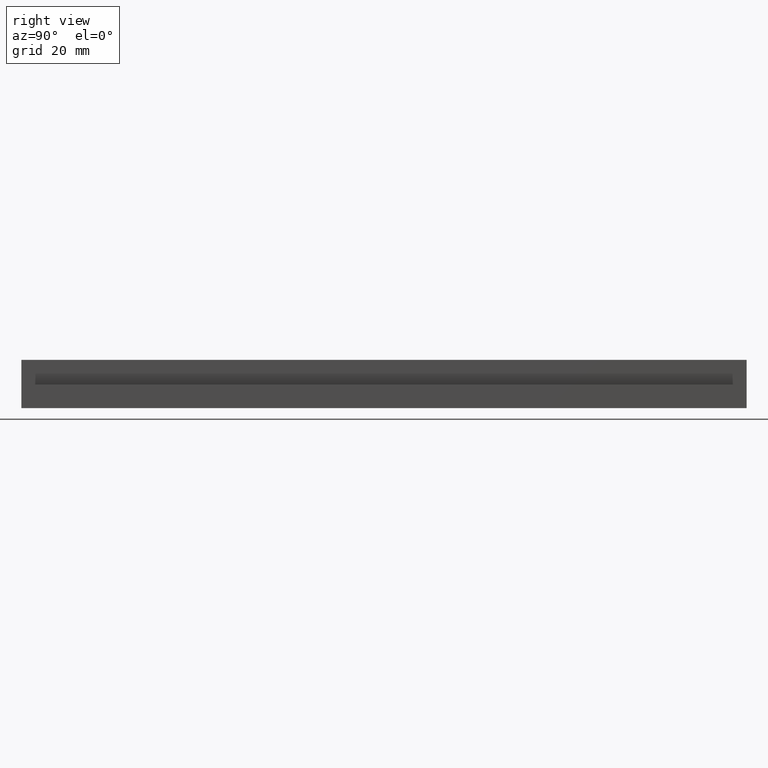
[diagram: clean part render]
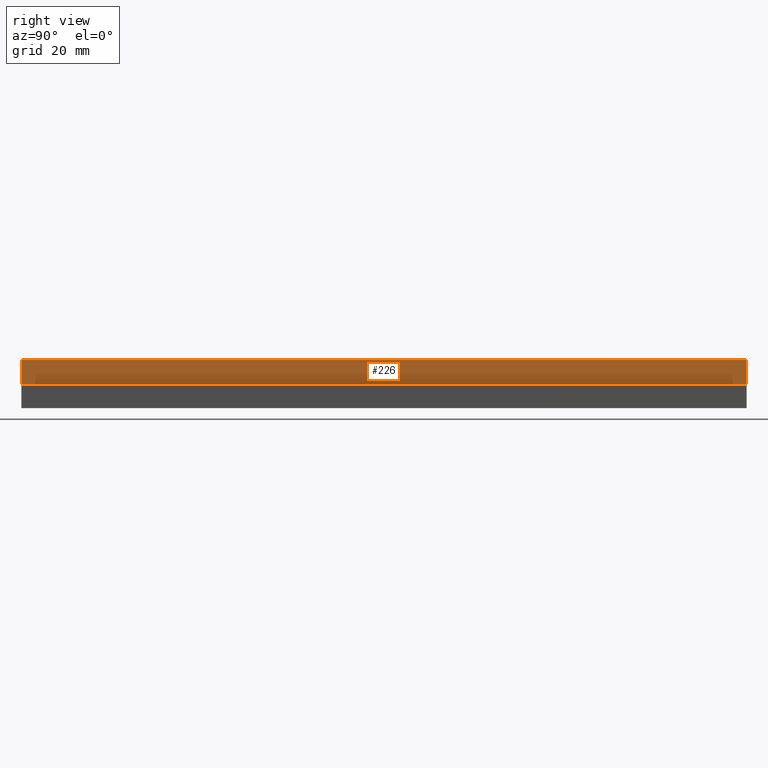
[diagram: same view with one face highlighted and labeled with its STEP entity id]
A machine part, right view. The second image highlights one B-rep face of the part: STEP entity #226.
In plain terms, the highlighted planar face has unit normal (1, 0, 0).
Its self-contained STEP definition (entity closure, byte-faithful):
#29=LINE('',#349,#53);
#31=LINE('',#353,#55);
#32=LINE('',#355,#56);
#33=LINE('',#356,#57);
#53=VECTOR('',#287,120.);
#55=VECTOR('',#291,4.09999999998354);
#56=VECTOR('',#292,120.);
#57=VECTOR('',#293,4.09999999998354);
#68=PLANE('',#244);
#86=FACE_OUTER_BOUND('',#102,.T.);
#102=EDGE_LOOP('',(#187,#188,#189,#190));
#127=VERTEX_POINT('',#346);
#128=VERTEX_POINT('',#348);
#129=VERTEX_POINT('',#352);
#130=VERTEX_POINT('',#354);
#151=EDGE_CURVE('',#127,#128,#29,.T.);
#153=EDGE_CURVE('',#127,#129,#31,.T.);
#154=EDGE_CURVE('',#129,#130,#32,.T.);
#155=EDGE_CURVE('',#128,#130,#33,.T.);
#187=ORIENTED_EDGE('',*,*,#151,.F.);
#188=ORIENTED_EDGE('',*,*,#153,.T.);
#189=ORIENTED_EDGE('',*,*,#154,.T.);
#190=ORIENTED_EDGE('',*,*,#155,.F.);
#226=ADVANCED_FACE('',(#86),#68,.T.);
#244=AXIS2_PLACEMENT_3D('',#351,#289,#290);
#287=DIRECTION('',(0.,-1.,0.));
#289=DIRECTION('center_axis',(1.,0.,0.));
#290=DIRECTION('ref_axis',(0.,0.,-1.));
#291=DIRECTION('',(0.,0.,1.));
#292=DIRECTION('',(0.,-1.,0.));
#293=DIRECTION('',(0.,0.,1.));
#346=CARTESIAN_POINT('',(4.04999999998381,15.0000000004197,3.89999999998463));
#348=CARTESIAN_POINT('',(4.04999999998381,-104.99999999958,3.89999999998463));
#349=CARTESIAN_POINT('',(4.04999999998381,15.0000000004197,3.89999999998463));
#351=CARTESIAN_POINT('Origin',(4.04999999998381,15.0000000004197,3.89999999998463));
#352=CARTESIAN_POINT('',(4.04999999998381,15.0000000004197,7.99999999996817));
#353=CARTESIAN_POINT('',(4.04999999998381,15.0000000004197,3.89999999998463));
#354=CARTESIAN_POINT('',(4.04999999998381,-104.99999999958,7.99999999996817));
#355=CARTESIAN_POINT('',(4.04999999998381,-91.9615045242668,7.99999999996817));
#356=CARTESIAN_POINT('',(4.04999999998381,-104.99999999958,3.89999999998463));